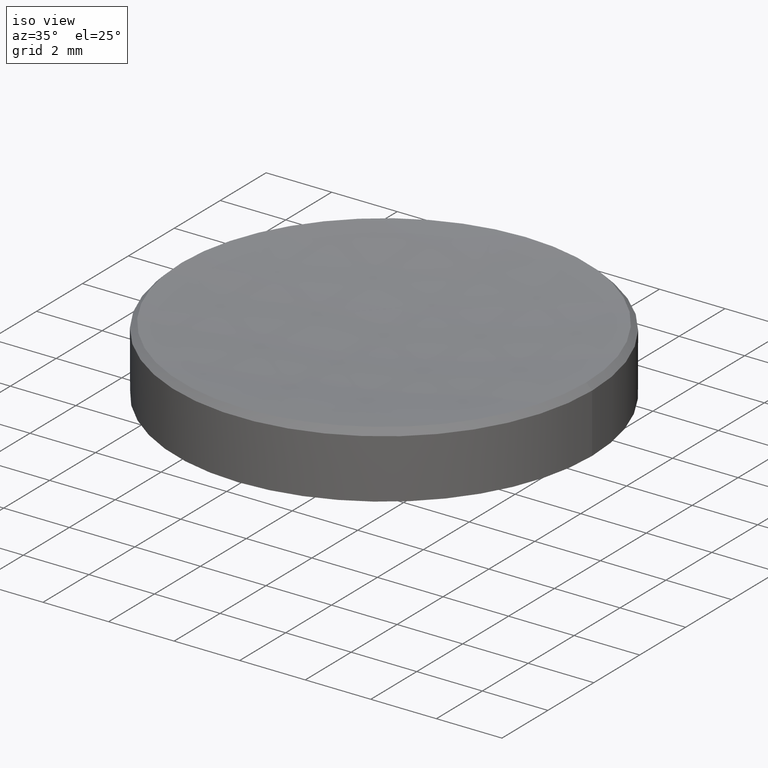
[diagram: clean part render]
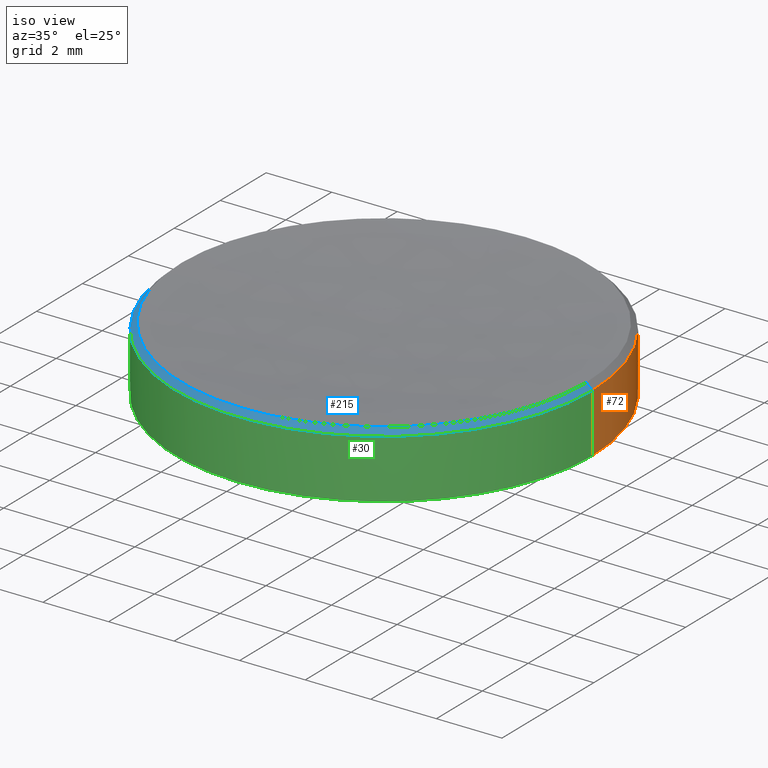
[diagram: same view with three faces highlighted in distinct colors, each labeled with its STEP entity id]
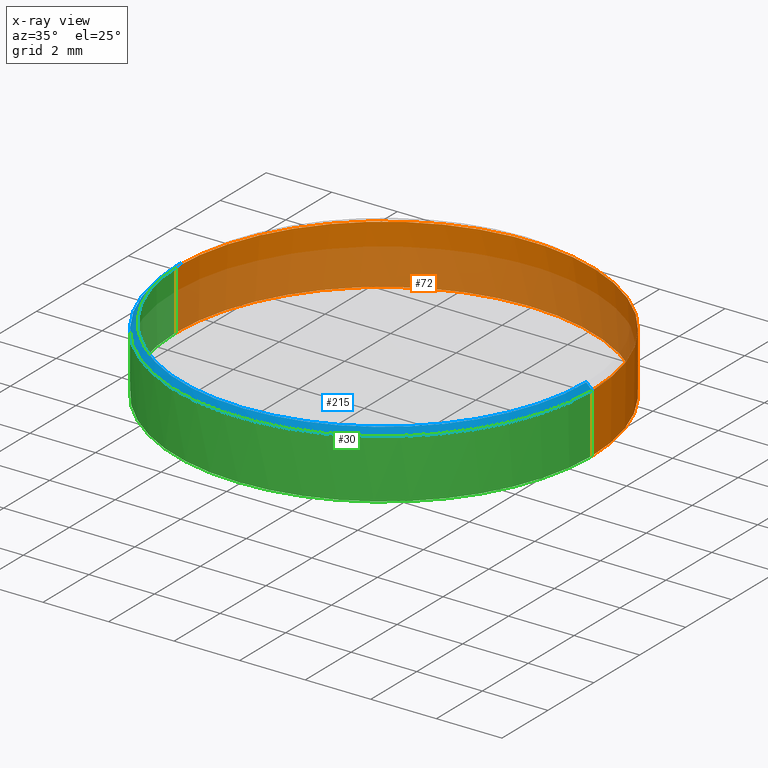
[diagram: x-ray of the same camera — body ghosted, the three highlighted faces saturated]
A machine part, iso view with three faces highlighted in distinct colors.
The next image is the same camera in x-ray (body ghosted, the three faces saturated) — at least one of them is partly hidden behind the body in this view.
Their STEP definitions:

[orange] entity #72 — the highlighted cylindrical surface (partial cylindrical patch) has radius 6.35 mm, axis along (-0, -0, -1).
#2 = ORIENTED_EDGE ( 'NONE', *, *, #268, .T. ) ;
#11 = CARTESIAN_POINT ( 'NONE',  ( 6.349999999999999645, 7.776507174585692163E-16, 10.00000000000000000 ) ) ;
#16 = DIRECTION ( 'NONE',  ( 1.000000000000000000, 0.000000000000000000, 0.000000000000000000 ) ) ;
#18 = VECTOR ( 'NONE', #244, 1000.000000000000000 ) ;
#22 = CARTESIAN_POINT ( 'NONE',  ( -6.349999999999999645, 0.000000000000000000, 10.00000000000000000 ) ) ;
#26 = AXIS2_PLACEMENT_3D ( 'NONE', #151, #105, #112 ) ;
#32 = AXIS2_PLACEMENT_3D ( 'NONE', #260, #55, #16 ) ;
#33 = AXIS2_PLACEMENT_3D ( 'NONE', #153, #79, #213 ) ;
#35 = CYLINDRICAL_SURFACE ( 'NONE', #107, 6.349999999999999645 ) ;
#42 = VERTEX_POINT ( 'NONE', #202 ) ;
#48 = DIRECTION ( 'NONE',  ( -0.000000000000000000, -0.000000000000000000, -1.000000000000000000 ) ) ;
#54 = EDGE_CURVE ( 'NONE', #131, #42, #230, .T. ) ;
#55 = DIRECTION ( 'NONE',  ( -0.000000000000000000, -0.000000000000000000, 1.000000000000000000 ) ) ;
#71 = ORIENTED_EDGE ( 'NONE', *, *, #128, .T. ) ;
#72 = ADVANCED_FACE ( 'NONE', ( #99 ), #35, .T. ) ;
#75 = DIRECTION ( 'NONE',  ( -1.000000000000000000, 0.000000000000000000, 0.000000000000000000 ) ) ;
#79 = DIRECTION ( 'NONE',  ( -0.000000000000000000, -0.000000000000000000, 1.000000000000000000 ) ) ;
#83 = LINE ( 'NONE', #11, #132 ) ;
#89 = CIRCLE ( 'NONE', #33, 6.349999999999998757 ) ;
#93 = CIRCLE ( 'NONE', #26, 6.349999999999999645 ) ;
#97 = CARTESIAN_POINT ( 'NONE',  ( -6.349999999999998757, 0.000000000000000000, 4.000000000000000000 ) ) ;
#99 = FACE_OUTER_BOUND ( 'NONE', #154, .T. ) ;
#105 = DIRECTION ( 'NONE',  ( 0.000000000000000000, 0.000000000000000000, -1.000000000000000000 ) ) ;
#107 = AXIS2_PLACEMENT_3D ( 'NONE', #121, #180, #75 ) ;
#112 = DIRECTION ( 'NONE',  ( 1.000000000000000000, 0.000000000000000000, 0.000000000000000000 ) ) ;
#113 = ORIENTED_EDGE ( 'NONE', *, *, #54, .T. ) ;
#117 = ORIENTED_EDGE ( 'NONE', *, *, #282, .F. ) ;
#121 = CARTESIAN_POINT ( 'NONE',  ( 0.000000000000000000, 0.000000000000000000, 10.00000000000000000 ) ) ;
#128 = EDGE_CURVE ( 'NONE', #196, #131, #83, .T. ) ;
#131 = VERTEX_POINT ( 'NONE', #257 ) ;
#132 = VECTOR ( 'NONE', #48, 1000.000000000000000 ) ;
#151 = CARTESIAN_POINT ( 'NONE',  ( 0.000000000000000000, 0.000000000000000000, 5.800000000000006928 ) ) ;
#153 = CARTESIAN_POINT ( 'NONE',  ( 0.000000000000000000, 0.000000000000000000, 4.000000000000000000 ) ) ;
#154 = EDGE_LOOP ( 'NONE', ( #243, #71, #113, #2, #117 ) ) ;
#156 = CARTESIAN_POINT ( 'NONE',  ( -6.349999999999999645, 0.000000000000000000, 5.800000000000006928 ) ) ;
#166 = LINE ( 'NONE', #22, #18 ) ;
#180 = DIRECTION ( 'NONE',  ( -0.000000000000000000, -0.000000000000000000, -1.000000000000000000 ) ) ;
#193 = VERTEX_POINT ( 'NONE', #97 ) ;
#196 = VERTEX_POINT ( 'NONE', #231 ) ;
#202 = CARTESIAN_POINT ( 'NONE',  ( 0.000000000000000000, 6.350000000000001421, 3.999999999999999112 ) ) ;
#213 = DIRECTION ( 'NONE',  ( 1.000000000000000000, 0.000000000000000000, 0.000000000000000000 ) ) ;
#228 = VERTEX_POINT ( 'NONE', #156 ) ;
#230 = CIRCLE ( 'NONE', #32, 6.349999999999998757 ) ;
#231 = CARTESIAN_POINT ( 'NONE',  ( 6.349999999999999645, 7.776507174585692163E-16, 5.800000000000006928 ) ) ;
#243 = ORIENTED_EDGE ( 'NONE', *, *, #263, .T. ) ;
#244 = DIRECTION ( 'NONE',  ( -0.000000000000000000, -0.000000000000000000, -1.000000000000000000 ) ) ;
#257 = CARTESIAN_POINT ( 'NONE',  ( 6.349999999999998757, 7.776507174585691177E-16, 4.000000000000000000 ) ) ;
#260 = CARTESIAN_POINT ( 'NONE',  ( 0.000000000000000000, 0.000000000000000000, 4.000000000000000000 ) ) ;
#263 = EDGE_CURVE ( 'NONE', #228, #196, #93, .T. ) ;
#268 = EDGE_CURVE ( 'NONE', #42, #193, #89, .T. ) ;
#282 = EDGE_CURVE ( 'NONE', #228, #193, #166, .T. ) ;

[blue] entity #215 — the highlighted conical surface has half-angle 45 deg.
#7 = DIRECTION ( 'NONE',  ( 0.000000000000000000, 0.000000000000000000, -1.000000000000000000 ) ) ;
#9 = FACE_OUTER_BOUND ( 'NONE', #114, .T. ) ;
#15 = DIRECTION ( 'NONE',  ( -0.000000000000000000, -0.000000000000000000, 1.000000000000000000 ) ) ;
#20 = VECTOR ( 'NONE', #222, 999.9999999999998863 ) ;
#31 = CARTESIAN_POINT ( 'NONE',  ( -7.557706131380439534E-16, -6.171335389634308832, 5.978664610365742149 ) ) ;
#41 = CIRCLE ( 'NONE', #169, 6.349999999999999645 ) ;
#45 = VERTEX_POINT ( 'NONE', #179 ) ;
#49 = ORIENTED_EDGE ( 'NONE', *, *, #187, .T. ) ;
#52 = DIRECTION ( 'NONE',  ( 0.000000000000000000, 0.000000000000000000, -1.000000000000000000 ) ) ;
#59 = AXIS2_PLACEMENT_3D ( 'NONE', #247, #15, #178 ) ;
#67 = DIRECTION ( 'NONE',  ( 1.000000000000000000, 0.000000000000000000, 0.000000000000000000 ) ) ;
#69 = CARTESIAN_POINT ( 'NONE',  ( 0.000000000000000000, 0.000000000000000000, 5.978664610365724386 ) ) ;
#76 = DIRECTION ( 'NONE',  ( 1.000000000000000000, 0.000000000000000000, 0.000000000000000000 ) ) ;
#80 = AXIS2_PLACEMENT_3D ( 'NONE', #124, #123, #67 ) ;
#96 = EDGE_CURVE ( 'NONE', #45, #196, #119, .T. ) ;
#104 = DIRECTION ( 'NONE',  ( 0.7071067811865716646, 8.659560562355227448E-17, -0.7071067811865234809 ) ) ;
#114 = EDGE_LOOP ( 'NONE', ( #246, #272, #152, #49, #143 ) ) ;
#119 = LINE ( 'NONE', #165, #150 ) ;
#123 = DIRECTION ( 'NONE',  ( -0.000000000000000000, -0.000000000000000000, 1.000000000000000000 ) ) ;
#124 = CARTESIAN_POINT ( 'NONE',  ( 0.000000000000000000, 0.000000000000000000, 5.978664610365738596 ) ) ;
#127 = CIRCLE ( 'NONE', #80, 6.171335389634259094 ) ;
#135 = VERTEX_POINT ( 'NONE', #158 ) ;
#143 = ORIENTED_EDGE ( 'NONE', *, *, #168, .F. ) ;
#146 = VERTEX_POINT ( 'NONE', #31 ) ;
#147 = LINE ( 'NONE', #159, #20 ) ;
#150 = VECTOR ( 'NONE', #104, 999.9999999999998863 ) ;
#152 = ORIENTED_EDGE ( 'NONE', *, *, #238, .F. ) ;
#156 = CARTESIAN_POINT ( 'NONE',  ( -6.349999999999999645, 0.000000000000000000, 5.800000000000006928 ) ) ;
#158 = CARTESIAN_POINT ( 'NONE',  ( -6.171335389634259094, 0.000000000000000000, 5.978664610365738596 ) ) ;
#159 = CARTESIAN_POINT ( 'NONE',  ( -6.171335389634268864, 0.000000000000000000, 5.978664610365724386 ) ) ;
#165 = CARTESIAN_POINT ( 'NONE',  ( 6.171335389634268864, 7.557706131380392202E-16, 5.978664610365724386 ) ) ;
#168 = EDGE_CURVE ( 'NONE', #196, #228, #41, .T. ) ;
#169 = AXIS2_PLACEMENT_3D ( 'NONE', #275, #7, #76 ) ;
#178 = DIRECTION ( 'NONE',  ( 1.000000000000000000, 0.000000000000000000, 0.000000000000000000 ) ) ;
#179 = CARTESIAN_POINT ( 'NONE',  ( 6.171335389634259094, 7.667106652983034787E-16, 5.978664610365738596 ) ) ;
#187 = EDGE_CURVE ( 'NONE', #135, #228, #147, .T. ) ;
#196 = VERTEX_POINT ( 'NONE', #231 ) ;
#207 = CIRCLE ( 'NONE', #59, 6.171335389634259094 ) ;
#214 = EDGE_CURVE ( 'NONE', #146, #45, #127, .T. ) ;
#215 = ADVANCED_FACE ( 'NONE', ( #9 ), #235, .T. ) ;
#222 = DIRECTION ( 'NONE',  ( -0.7071067811865716646, 0.000000000000000000, -0.7071067811865234809 ) ) ;
#228 = VERTEX_POINT ( 'NONE', #156 ) ;
#231 = CARTESIAN_POINT ( 'NONE',  ( 6.349999999999999645, 7.776507174585692163E-16, 5.800000000000006928 ) ) ;
#235 = CONICAL_SURFACE ( 'NONE', #239, 6.171335389634268864, 0.7853981633974822518 ) ;
#238 = EDGE_CURVE ( 'NONE', #135, #146, #207, .T. ) ;
#239 = AXIS2_PLACEMENT_3D ( 'NONE', #69, #52, #248 ) ;
#246 = ORIENTED_EDGE ( 'NONE', *, *, #96, .F. ) ;
#247 = CARTESIAN_POINT ( 'NONE',  ( 0.000000000000000000, 0.000000000000000000, 5.978664610365738596 ) ) ;
#248 = DIRECTION ( 'NONE',  ( -1.000000000000000000, 0.000000000000000000, 0.000000000000000000 ) ) ;
#272 = ORIENTED_EDGE ( 'NONE', *, *, #214, .F. ) ;
#275 = CARTESIAN_POINT ( 'NONE',  ( 0.000000000000000000, 0.000000000000000000, 5.800000000000006928 ) ) ;

[green] entity #30 — the highlighted cylindrical surface (partial cylindrical patch) has radius 6.35 mm, axis along (-0, -0, -1).
#6 = CIRCLE ( 'NONE', #250, 6.349999999999998757 ) ;
#7 = DIRECTION ( 'NONE',  ( 0.000000000000000000, 0.000000000000000000, -1.000000000000000000 ) ) ;
#11 = CARTESIAN_POINT ( 'NONE',  ( 6.349999999999999645, 7.776507174585692163E-16, 10.00000000000000000 ) ) ;
#18 = VECTOR ( 'NONE', #244, 1000.000000000000000 ) ;
#22 = CARTESIAN_POINT ( 'NONE',  ( -6.349999999999999645, 0.000000000000000000, 10.00000000000000000 ) ) ;
#28 = DIRECTION ( 'NONE',  ( -0.000000000000000000, -0.000000000000000000, 1.000000000000000000 ) ) ;
#30 = ADVANCED_FACE ( 'NONE', ( #255 ), #229, .T. ) ;
#38 = DIRECTION ( 'NONE',  ( 1.000000000000000000, 0.000000000000000000, 0.000000000000000000 ) ) ;
#41 = CIRCLE ( 'NONE', #169, 6.349999999999999645 ) ;
#47 = AXIS2_PLACEMENT_3D ( 'NONE', #141, #118, #98 ) ;
#48 = DIRECTION ( 'NONE',  ( -0.000000000000000000, -0.000000000000000000, -1.000000000000000000 ) ) ;
#61 = ORIENTED_EDGE ( 'NONE', *, *, #86, .T. ) ;
#63 = ORIENTED_EDGE ( 'NONE', *, *, #128, .F. ) ;
#70 = AXIS2_PLACEMENT_3D ( 'NONE', #149, #125, #38 ) ;
#76 = DIRECTION ( 'NONE',  ( 1.000000000000000000, 0.000000000000000000, 0.000000000000000000 ) ) ;
#83 = LINE ( 'NONE', #11, #132 ) ;
#84 = CARTESIAN_POINT ( 'NONE',  ( -7.776507174585693149E-16, -6.350000000000001421, 3.999999999999999112 ) ) ;
#86 = EDGE_CURVE ( 'NONE', #254, #131, #115, .T. ) ;
#94 = CARTESIAN_POINT ( 'NONE',  ( 0.000000000000000000, 0.000000000000000000, 4.000000000000000000 ) ) ;
#97 = CARTESIAN_POINT ( 'NONE',  ( -6.349999999999998757, 0.000000000000000000, 4.000000000000000000 ) ) ;
#98 = DIRECTION ( 'NONE',  ( -1.000000000000000000, 0.000000000000000000, 0.000000000000000000 ) ) ;
#115 = CIRCLE ( 'NONE', #70, 6.349999999999998757 ) ;
#118 = DIRECTION ( 'NONE',  ( -0.000000000000000000, -0.000000000000000000, -1.000000000000000000 ) ) ;
#125 = DIRECTION ( 'NONE',  ( -0.000000000000000000, -0.000000000000000000, 1.000000000000000000 ) ) ;
#128 = EDGE_CURVE ( 'NONE', #196, #131, #83, .T. ) ;
#131 = VERTEX_POINT ( 'NONE', #257 ) ;
#132 = VECTOR ( 'NONE', #48, 1000.000000000000000 ) ;
#137 = DIRECTION ( 'NONE',  ( 1.000000000000000000, 0.000000000000000000, 0.000000000000000000 ) ) ;
#139 = EDGE_CURVE ( 'NONE', #193, #254, #6, .T. ) ;
#141 = CARTESIAN_POINT ( 'NONE',  ( 0.000000000000000000, 0.000000000000000000, 10.00000000000000000 ) ) ;
#149 = CARTESIAN_POINT ( 'NONE',  ( 0.000000000000000000, 0.000000000000000000, 4.000000000000000000 ) ) ;
#156 = CARTESIAN_POINT ( 'NONE',  ( -6.349999999999999645, 0.000000000000000000, 5.800000000000006928 ) ) ;
#160 = EDGE_LOOP ( 'NONE', ( #63, #194, #224, #276, #61 ) ) ;
#166 = LINE ( 'NONE', #22, #18 ) ;
#168 = EDGE_CURVE ( 'NONE', #196, #228, #41, .T. ) ;
#169 = AXIS2_PLACEMENT_3D ( 'NONE', #275, #7, #76 ) ;
#193 = VERTEX_POINT ( 'NONE', #97 ) ;
#194 = ORIENTED_EDGE ( 'NONE', *, *, #168, .T. ) ;
#196 = VERTEX_POINT ( 'NONE', #231 ) ;
#224 = ORIENTED_EDGE ( 'NONE', *, *, #282, .T. ) ;
#228 = VERTEX_POINT ( 'NONE', #156 ) ;
#229 = CYLINDRICAL_SURFACE ( 'NONE', #47, 6.349999999999999645 ) ;
#231 = CARTESIAN_POINT ( 'NONE',  ( 6.349999999999999645, 7.776507174585692163E-16, 5.800000000000006928 ) ) ;
#244 = DIRECTION ( 'NONE',  ( -0.000000000000000000, -0.000000000000000000, -1.000000000000000000 ) ) ;
#250 = AXIS2_PLACEMENT_3D ( 'NONE', #94, #28, #137 ) ;
#254 = VERTEX_POINT ( 'NONE', #84 ) ;
#255 = FACE_OUTER_BOUND ( 'NONE', #160, .T. ) ;
#257 = CARTESIAN_POINT ( 'NONE',  ( 6.349999999999998757, 7.776507174585691177E-16, 4.000000000000000000 ) ) ;
#275 = CARTESIAN_POINT ( 'NONE',  ( 0.000000000000000000, 0.000000000000000000, 5.800000000000006928 ) ) ;
#276 = ORIENTED_EDGE ( 'NONE', *, *, #139, .T. ) ;
#282 = EDGE_CURVE ( 'NONE', #228, #193, #166, .T. ) ;